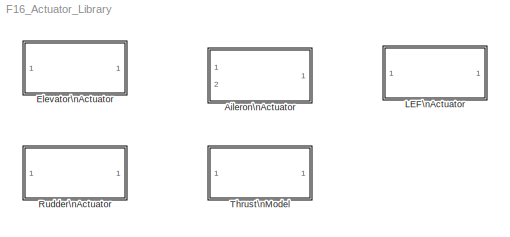
MODEL F16_Actuator_Library
KIND library
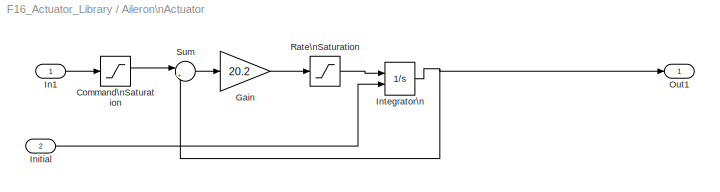
BLOCK [SubSystem] Aileron\nActuator
  FunctionWithSeparateData = off
  MaskHideContents = off
  MinAlgLoopOccurrences = off
  Opaque = off
  Ports = [2, 1]
  PropExecContextOutsideSubsystem = off
  RTWSystemCode = Auto
  RequestExecContextInheritance = off
  SID = 1
BLOCK [Saturate] Aileron\nActuator/Command\nSaturation
  InputPortMap = u0
  LowerLimit = -21.5
  Ports = [1, 1]
  SID = 3
  UpperLimit = 21.5
BLOCK [Gain] Aileron\nActuator/Gain
  Gain = 20.2
  SID = 4
BLOCK [Inport] Aileron\nActuator/In1
  IconDisplay = Port number
  SID = 2
BLOCK [Inport] Aileron\nActuator/Initial
  IconDisplay = Port number
  Port = 2
  SID = 30
BLOCK [Integrator] Aileron\nActuator/Integrator\n
  InitialCondition = trim_control(2)
  InitialConditionSource = external
  LimitOutput = on
  LowerSaturationLimit = -21.5
  Ports = [2, 1]
  SID = 5
  UpperSaturationLimit = 21.5
BLOCK [Outport] Aileron\nActuator/Out1
  IconDisplay = Port number
  SID = 8
BLOCK [Saturate] Aileron\nActuator/Rate\nSaturation
  InputPortMap = u0
  LowerLimit = -80
  Ports = [1, 1]
  SID = 6
  UpperLimit = 80
BLOCK [Sum] Aileron\nActuator/Sum
  IconShape = round
  Inputs = |+-
  Ports = [2, 1]
  SID = 7
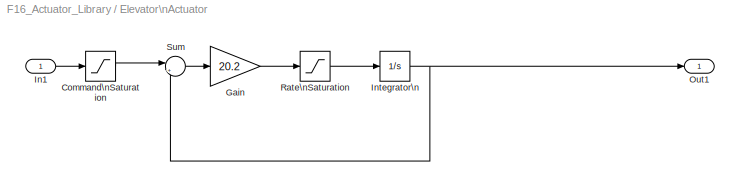
BLOCK [SubSystem] Elevator\nActuator
  FunctionWithSeparateData = off
  MaskHideContents = off
  MinAlgLoopOccurrences = off
  Opaque = off
  Ports = [1, 1]
  PropExecContextOutsideSubsystem = off
  RTWSystemCode = Auto
  RequestExecContextInheritance = off
  SID = 9
BLOCK [Saturate] Elevator\nActuator/Command\nSaturation
  InputPortMap = u0
  LowerLimit = -25
  Ports = [1, 1]
  SID = 11
  UpperLimit = 25
BLOCK [Gain] Elevator\nActuator/Gain
  Gain = 20.2
  SID = 12
BLOCK [Inport] Elevator\nActuator/In1
  IconDisplay = Port number
  SID = 10
BLOCK [Integrator] Elevator\nActuator/Integrator\n
  InitialCondition = trim_control(1)
  LimitOutput = on
  LowerSaturationLimit = -25
  Ports = [1, 1]
  SID = 13
  UpperSaturationLimit = 25
BLOCK [Outport] Elevator\nActuator/Out1
  IconDisplay = Port number
  SID = 16
BLOCK [Saturate] Elevator\nActuator/Rate\nSaturation
  InputPortMap = u0
  LowerLimit = -60
  Ports = [1, 1]
  SID = 14
  UpperLimit = 60
BLOCK [Sum] Elevator\nActuator/Sum
  IconShape = round
  Inputs = |+-
  Ports = [2, 1]
  SID = 15
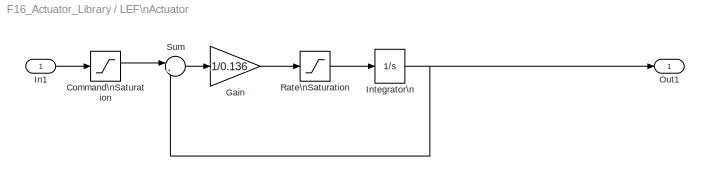
BLOCK [SubSystem] LEF\nActuator
  AncestorBlock = F16_Actuator_Library/Aileron\nActuator
  FunctionWithSeparateData = off
  MaskHideContents = off
  MinAlgLoopOccurrences = off
  Opaque = off
  Ports = [1, 1]
  PropExecContextOutsideSubsystem = off
  RTWSystemCode = Auto
  RequestExecContextInheritance = off
  SID = 17
BLOCK [Saturate] LEF\nActuator/Command\nSaturation
  InputPortMap = u0
  LowerLimit = 0
  Ports = [1, 1]
  SID = 17:3
  UpperLimit = 25
BLOCK [Gain] LEF\nActuator/Gain
  Gain = 1/0.136
  SID = 17:4
BLOCK [Inport] LEF\nActuator/In1
  IconDisplay = Port number
  SID = 17:2
BLOCK [Integrator] LEF\nActuator/Integrator\n
  InitialCondition = dLEF
  LimitOutput = on
  LowerSaturationLimit = 0
  Ports = [1, 1]
  SID = 17:5
  UpperSaturationLimit = 25
BLOCK [Outport] LEF\nActuator/Out1
  IconDisplay = Port number
  SID = 17:8
BLOCK [Saturate] LEF\nActuator/Rate\nSaturation
  InputPortMap = u0
  LowerLimit = -25
  Ports = [1, 1]
  SID = 17:6
  UpperLimit = 25
BLOCK [Sum] LEF\nActuator/Sum
  IconShape = round
  Inputs = |+-
  Ports = [2, 1]
  SID = 17:7
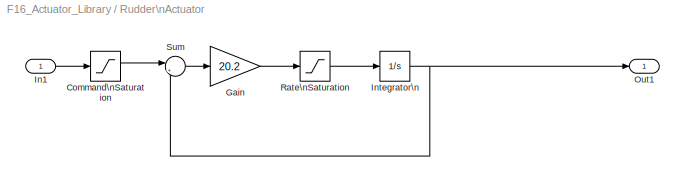
BLOCK [SubSystem] Rudder\nActuator
  FunctionWithSeparateData = off
  MaskHideContents = off
  MinAlgLoopOccurrences = off
  Opaque = off
  Ports = [1, 1]
  PropExecContextOutsideSubsystem = off
  RTWSystemCode = Auto
  RequestExecContextInheritance = off
  SID = 18
BLOCK [Saturate] Rudder\nActuator/Command\nSaturation
  InputPortMap = u0
  LowerLimit = -30
  Ports = [1, 1]
  SID = 20
  UpperLimit = 30
BLOCK [Gain] Rudder\nActuator/Gain
  Gain = 20.2
  SID = 21
BLOCK [Inport] Rudder\nActuator/In1
  IconDisplay = Port number
  SID = 19
BLOCK [Integrator] Rudder\nActuator/Integrator\n
  InitialCondition = trim_control(3)
  LimitOutput = on
  LowerSaturationLimit = -30
  Ports = [1, 1]
  SID = 22
  UpperSaturationLimit = 30
BLOCK [Outport] Rudder\nActuator/Out1
  IconDisplay = Port number
  SID = 25
BLOCK [Saturate] Rudder\nActuator/Rate\nSaturation
  InputPortMap = u0
  LowerLimit = -120
  Ports = [1, 1]
  SID = 23
  UpperLimit = 120
BLOCK [Sum] Rudder\nActuator/Sum
  IconShape = round
  Inputs = |+-
  Ports = [2, 1]
  SID = 24
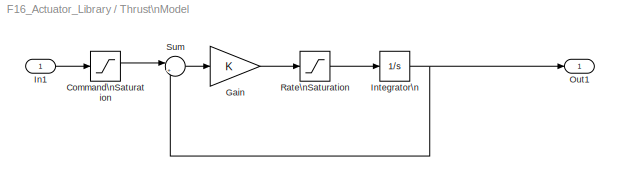
BLOCK [SubSystem] Thrust\nModel
  AncestorBlock = F16_Actuator_Library/Rudder\nActuator
  FunctionWithSeparateData = off
  MaskHideContents = off
  MinAlgLoopOccurrences = off
  Opaque = off
  Ports = [1, 1]
  PropExecContextOutsideSubsystem = off
  RTWSystemCode = Auto
  RequestExecContextInheritance = off
  SID = 26
BLOCK [Saturate] Thrust\nModel/Command\nSaturation
  InputPortMap = u0
  LowerLimit = 1000
  Ports = [1, 1]
  SID = 26:2
  UpperLimit = 19000
BLOCK [Gain] Thrust\nModel/Gain
  SID = 26:3
BLOCK [Inport] Thrust\nModel/In1
  IconDisplay = Port number
  SID = 26:1
BLOCK [Integrator] Thrust\nModel/Integrator\n
  InitialCondition = trim_thrust
  LowerSaturationLimit = -30
  Ports = [1, 1]
  SID = 26:4
  UpperSaturationLimit = 30
BLOCK [Outport] Thrust\nModel/Out1
  IconDisplay = Port number
  SID = 26:7
BLOCK [Saturate] Thrust\nModel/Rate\nSaturation
  InputPortMap = u0
  LowerLimit = -10000
  Ports = [1, 1]
  SID = 26:5
  UpperLimit = 10000
BLOCK [Sum] Thrust\nModel/Sum
  IconShape = round
  Inputs = |+-
  Ports = [2, 1]
  SID = 26:6
LINE Aileron\nActuator/Command\nSaturation:1 -> Aileron\nActuator/Sum:1
LINE Aileron\nActuator/Gain:1 -> Aileron\nActuator/Rate\nSaturation:1
LINE Aileron\nActuator/In1:1 -> Aileron\nActuator/Command\nSaturation:1
LINE Aileron\nActuator/Initial:1 -> Aileron\nActuator/Integrator\n:2
NET Aileron\nActuator/Integrator\n:1 -> Aileron\nActuator/Out1:1, Aileron\nActuator/Sum:2
LINE Aileron\nActuator/Rate\nSaturation:1 -> Aileron\nActuator/Integrator\n:1
LINE Aileron\nActuator/Sum:1 -> Aileron\nActuator/Gain:1
LINE Elevator\nActuator/Command\nSaturation:1 -> Elevator\nActuator/Sum:1
LINE Elevator\nActuator/Gain:1 -> Elevator\nActuator/Rate\nSaturation:1
LINE Elevator\nActuator/In1:1 -> Elevator\nActuator/Command\nSaturation:1
NET Elevator\nActuator/Integrator\n:1 -> Elevator\nActuator/Out1:1, Elevator\nActuator/Sum:2
LINE Elevator\nActuator/Rate\nSaturation:1 -> Elevator\nActuator/Integrator\n:1
LINE Elevator\nActuator/Sum:1 -> Elevator\nActuator/Gain:1
LINE LEF\nActuator/Command\nSaturation:1 -> LEF\nActuator/Sum:1
LINE LEF\nActuator/Gain:1 -> LEF\nActuator/Rate\nSaturation:1
LINE LEF\nActuator/In1:1 -> LEF\nActuator/Command\nSaturation:1
NET LEF\nActuator/Integrator\n:1 -> LEF\nActuator/Out1:1, LEF\nActuator/Sum:2
LINE LEF\nActuator/Rate\nSaturation:1 -> LEF\nActuator/Integrator\n:1
LINE LEF\nActuator/Sum:1 -> LEF\nActuator/Gain:1
LINE Rudder\nActuator/Command\nSaturation:1 -> Rudder\nActuator/Sum:1
LINE Rudder\nActuator/Gain:1 -> Rudder\nActuator/Rate\nSaturation:1
LINE Rudder\nActuator/In1:1 -> Rudder\nActuator/Command\nSaturation:1
NET Rudder\nActuator/Integrator\n:1 -> Rudder\nActuator/Out1:1, Rudder\nActuator/Sum:2
LINE Rudder\nActuator/Rate\nSaturation:1 -> Rudder\nActuator/Integrator\n:1
LINE Rudder\nActuator/Sum:1 -> Rudder\nActuator/Gain:1
LINE Thrust\nModel/Command\nSaturation:1 -> Thrust\nModel/Sum:1
LINE Thrust\nModel/Gain:1 -> Thrust\nModel/Rate\nSaturation:1
LINE Thrust\nModel/In1:1 -> Thrust\nModel/Command\nSaturation:1
NET Thrust\nModel/Integrator\n:1 -> Thrust\nModel/Out1:1, Thrust\nModel/Sum:2
LINE Thrust\nModel/Rate\nSaturation:1 -> Thrust\nModel/Integrator\n:1
LINE Thrust\nModel/Sum:1 -> Thrust\nModel/Gain:1
note: NET lines group one-source signal fan-out (src -> all destinations, sorted); 1:1 wires keep LINE
